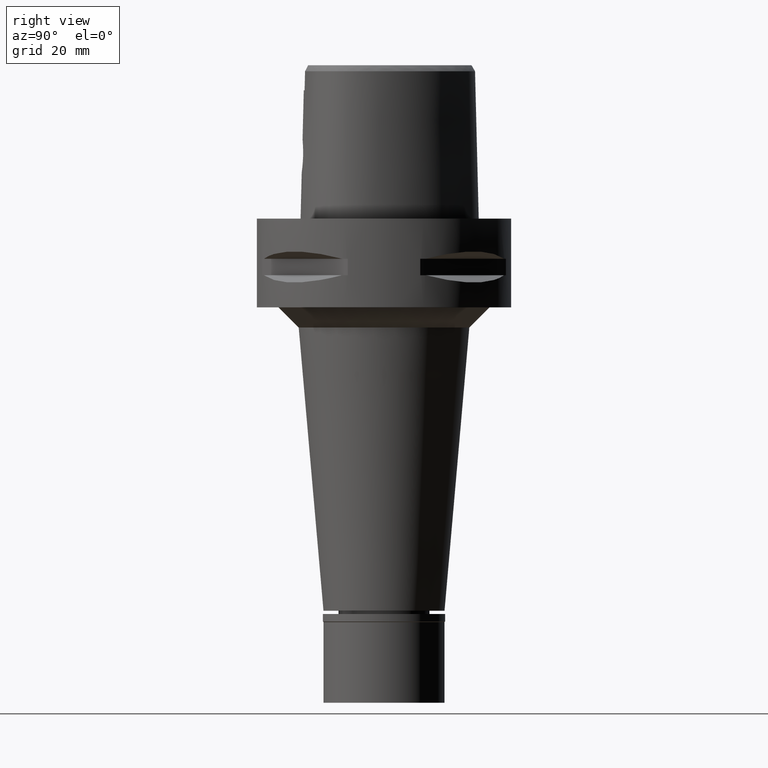
[diagram: clean part render]
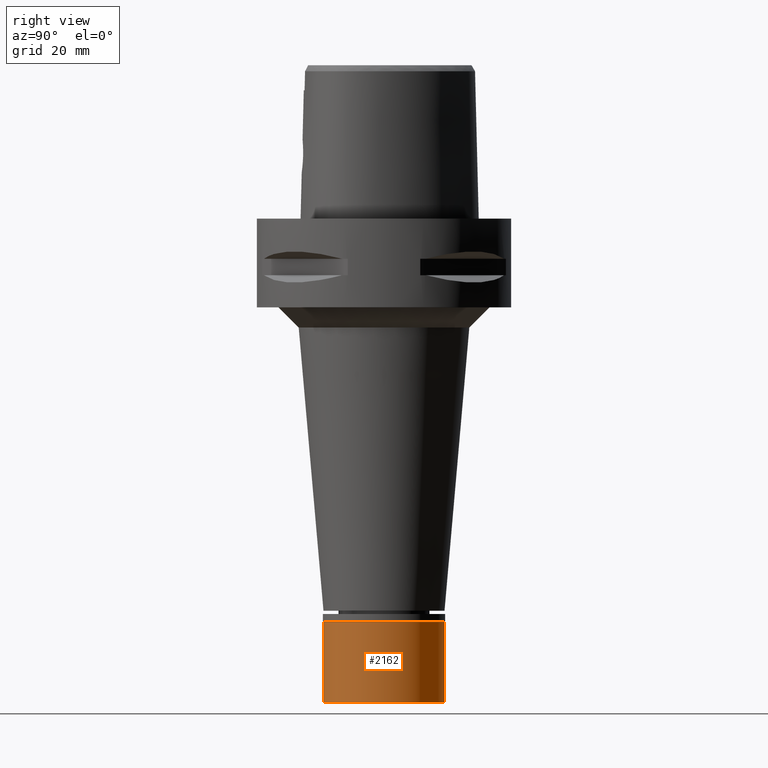
[diagram: same view with one face highlighted and labeled with its STEP entity id]
A machine part, right view. The second image highlights one B-rep face of the part: STEP entity #2162.
In plain terms, the highlighted cylindrical surface (partial cylindrical patch) has radius 15 mm, axis along (0, 0, -1).
Its self-contained STEP definition (entity closure, byte-faithful):
#23 = DIRECTION ( 'NONE',  ( 0.0000000000000000000, -1.000000000000000000, 0.0000000000000000000 ) ) ;
#387 = DIRECTION ( 'NONE',  ( 0.0000000000000000000, 0.0000000000000000000, -1.000000000000000000 ) ) ;
#501 = DIRECTION ( 'NONE',  ( 0.0000000000000000000, 0.0000000000000000000, 1.000000000000000000 ) ) ;
#513 = VECTOR ( 'NONE', #4003, 1000.000000000000000 ) ;
#644 = EDGE_CURVE ( 'NONE', #3334, #3359, #2375, .T. ) ;
#910 = VERTEX_POINT ( 'NONE', #2765 ) ;
#1120 = CARTESIAN_POINT ( 'NONE',  ( 0.0000000000000000000, -15.00000000000000000, -2.000000000000000000 ) ) ;
#1162 = DIRECTION ( 'NONE',  ( 0.0000000000000000000, 1.000000000000000000, 0.0000000000000000000 ) ) ;
#1191 = DIRECTION ( 'NONE',  ( 0.0000000000000000000, 0.0000000000000000000, -1.000000000000000000 ) ) ;
#1281 = VERTEX_POINT ( 'NONE', #5061 ) ;
#1650 = CARTESIAN_POINT ( 'NONE',  ( 0.0000000000000000000, 0.0000000000000000000, 0.0000000000000000000 ) ) ;
#1923 = AXIS2_PLACEMENT_3D ( 'NONE', #2166, #501, #2138 ) ;
#2138 = DIRECTION ( 'NONE',  ( 0.0000000000000000000, -1.000000000000000000, 0.0000000000000000000 ) ) ;
#2162 = ADVANCED_FACE ( 'NONE', ( #3197 ), #3257, .T. ) ;
#2166 = CARTESIAN_POINT ( 'NONE',  ( 0.0000000000000000000, 0.0000000000000000000, -22.00000000000000000 ) ) ;
#2249 = ORIENTED_EDGE ( 'NONE', *, *, #4995, .T. ) ;
#2321 = ORIENTED_EDGE ( 'NONE', *, *, #2523, .F. ) ;
#2375 = LINE ( 'NONE', #2753, #513 ) ;
#2504 = DIRECTION ( 'NONE',  ( 0.0000000000000000000, 0.0000000000000000000, -1.000000000000000000 ) ) ;
#2523 = EDGE_CURVE ( 'NONE', #1281, #910, #2882, .T. ) ;
#2671 = ORIENTED_EDGE ( 'NONE', *, *, #644, .T. ) ;
#2753 = CARTESIAN_POINT ( 'NONE',  ( 0.0000000000000000000, -15.00000000000000000, -2.000000000000000000 ) ) ;
#2765 = CARTESIAN_POINT ( 'NONE',  ( 0.0000000000000000000, 15.00000000000000000, -22.00000000000000000 ) ) ;
#2795 = CIRCLE ( 'NONE', #5048, 15.00000000000000000 ) ;
#2882 = LINE ( 'NONE', #4107, #4986 ) ;
#3197 = FACE_OUTER_BOUND ( 'NONE', #4627, .T. ) ;
#3257 = CYLINDRICAL_SURFACE ( 'NONE', #4567, 15.00000000000000000 ) ;
#3285 = EDGE_CURVE ( 'NONE', #3359, #910, #3655, .T. ) ;
#3334 = VERTEX_POINT ( 'NONE', #1120 ) ;
#3359 = VERTEX_POINT ( 'NONE', #5013 ) ;
#3655 = CIRCLE ( 'NONE', #1923, 15.00000000000000000 ) ;
#3793 = ORIENTED_EDGE ( 'NONE', *, *, #3285, .T. ) ;
#4003 = DIRECTION ( 'NONE',  ( 0.0000000000000000000, 0.0000000000000000000, -1.000000000000000000 ) ) ;
#4107 = CARTESIAN_POINT ( 'NONE',  ( 0.0000000000000000000, 15.00000000000000000, -2.000000000000000000 ) ) ;
#4424 = CARTESIAN_POINT ( 'NONE',  ( 0.0000000000000000000, 0.0000000000000000000, -2.000000000000000000 ) ) ;
#4567 = AXIS2_PLACEMENT_3D ( 'NONE', #1650, #387, #23 ) ;
#4627 = EDGE_LOOP ( 'NONE', ( #2249, #2671, #3793, #2321 ) ) ;
#4986 = VECTOR ( 'NONE', #2504, 1000.000000000000000 ) ;
#4995 = EDGE_CURVE ( 'NONE', #1281, #3334, #2795, .T. ) ;
#5013 = CARTESIAN_POINT ( 'NONE',  ( 0.0000000000000000000, -15.00000000000000000, -22.00000000000000000 ) ) ;
#5048 = AXIS2_PLACEMENT_3D ( 'NONE', #4424, #1191, #1162 ) ;
#5061 = CARTESIAN_POINT ( 'NONE',  ( 0.0000000000000000000, 15.00000000000000000, -2.000000000000000000 ) ) ;